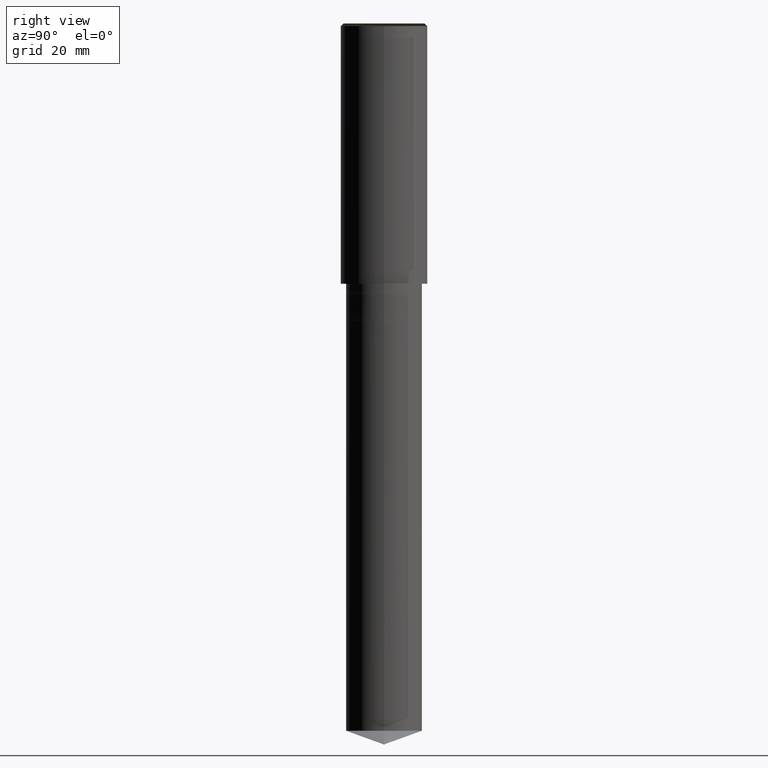
[diagram: clean part render]
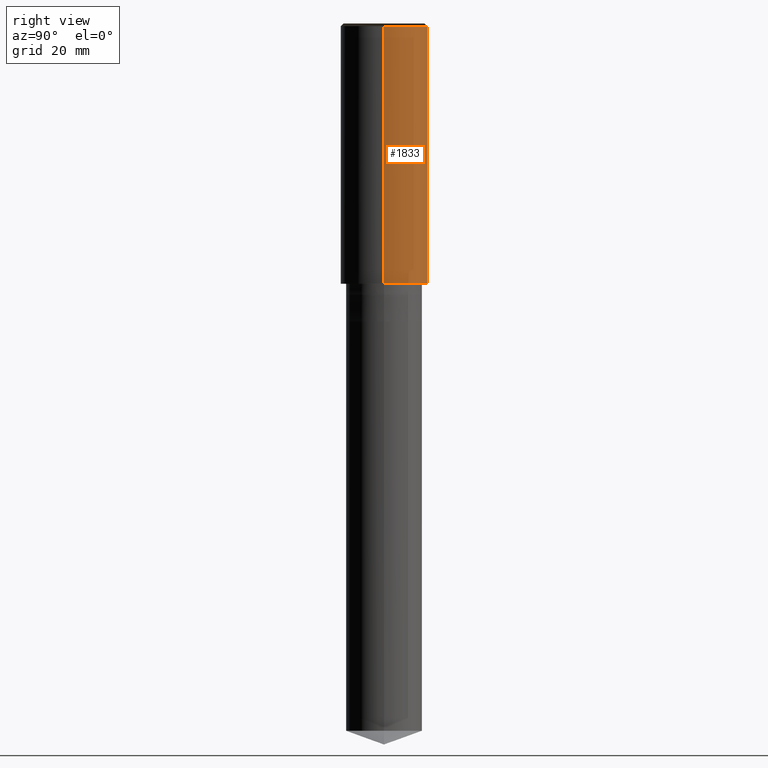
[diagram: same view with one face highlighted and labeled with its STEP entity id]
A machine part, right view. The second image highlights one B-rep face of the part: STEP entity #1833.
In plain terms, the highlighted face is a freeform B-spline surface patch.
Its self-contained STEP definition (entity closure, byte-faithful):
#1594=CARTESIAN_POINT('',(8.0,0.0,0.0));
#1595=CARTESIAN_POINT('',(8.0,8.0,0.0));
#1596=CARTESIAN_POINT('',(0.0,8.0,0.0));
#1597=CARTESIAN_POINT('',(-8.0,8.0,0.0));
#1598=CARTESIAN_POINT('',(-8.0,0.0,0.0));
#1599=CARTESIAN_POINT('',(8.0,0.0,47.5));
#1600=CARTESIAN_POINT('',(8.0,8.0,47.5));
#1601=CARTESIAN_POINT('',(0.0,8.0,47.5));
#1602=CARTESIAN_POINT('',(-8.0,8.0,47.5));
#1603=CARTESIAN_POINT('',(-8.0,0.0,47.5));
#1814=(
BOUNDED_SURFACE()
B_SPLINE_SURFACE(1,2,(
(#1594,#1595,#1596,#1597,#1598),
(#1599,#1600,#1601,#1602,#1603)
), .UNSPECIFIED.,.F.,.F.,.F.)
B_SPLINE_SURFACE_WITH_KNOTS((2,2),(3,2,3),(
0.0,1.0),(
0.0,0.5,1.0), .UNSPECIFIED.)
GEOMETRIC_REPRESENTATION_ITEM()
RATIONAL_B_SPLINE_SURFACE(((1.0,0.707106781187,1.0,0.707106781187,1.0),
(1.0,0.707106781187,1.0,0.707106781187,1.0)
))
REPRESENTATION_ITEM('')
SURFACE()
);
#1815=(
BOUNDED_CURVE()
B_SPLINE_CURVE(2,(#1598,#1597,#1596,#1595,#1594),.UNSPECIFIED.,.F.,.F.)
B_SPLINE_CURVE_WITH_KNOTS((3,2,3),
(0.0,0.5,1.0),.UNSPECIFIED.)
CURVE()
GEOMETRIC_REPRESENTATION_ITEM()
RATIONAL_B_SPLINE_CURVE((1.0,0.707106781187,1.0,0.707106781187,1.0))
REPRESENTATION_ITEM('')
);
#1816=(
BOUNDED_CURVE()
B_SPLINE_CURVE(1,(#1594,#1599),.UNSPECIFIED.,.F.,.F.)
B_SPLINE_CURVE_WITH_KNOTS((2,2),
(0.0,1.0),.UNSPECIFIED.)
CURVE()
GEOMETRIC_REPRESENTATION_ITEM()
RATIONAL_B_SPLINE_CURVE((1.0,1.0))
REPRESENTATION_ITEM('')
);
#1817=(
BOUNDED_CURVE()
B_SPLINE_CURVE(2,(#1599,#1600,#1601,#1602,#1603),.UNSPECIFIED.,.F.,.F.)
B_SPLINE_CURVE_WITH_KNOTS((3,2,3),
(0.0,0.5,1.0),.UNSPECIFIED.)
CURVE()
GEOMETRIC_REPRESENTATION_ITEM()
RATIONAL_B_SPLINE_CURVE((1.0,0.707106781187,1.0,0.707106781187,1.0))
REPRESENTATION_ITEM('')
);
#1818=(
BOUNDED_CURVE()
B_SPLINE_CURVE(1,(#1603,#1598),.UNSPECIFIED.,.F.,.F.)
B_SPLINE_CURVE_WITH_KNOTS((2,2),
(0.0,1.0),.UNSPECIFIED.)
CURVE()
GEOMETRIC_REPRESENTATION_ITEM()
RATIONAL_B_SPLINE_CURVE((1.0,1.0))
REPRESENTATION_ITEM('')
);
#1819=VERTEX_POINT('',#1594);
#1820=VERTEX_POINT('',#1598);
#1821=VERTEX_POINT('',#1599);
#1822=VERTEX_POINT('',#1603);
#1823=EDGE_CURVE('',#1820,#1819,#1815,.T.);
#1824=EDGE_CURVE('',#1819,#1821,#1816,.T.);
#1825=EDGE_CURVE('',#1821,#1822,#1817,.T.);
#1826=EDGE_CURVE('',#1822,#1820,#1818,.T.);
#1827=ORIENTED_EDGE('',*,*,#1823,.T.);
#1828=ORIENTED_EDGE('',*,*,#1824,.T.);
#1829=ORIENTED_EDGE('',*,*,#1825,.T.);
#1830=ORIENTED_EDGE('',*,*,#1826,.T.);
#1831=EDGE_LOOP('',(#1827,#1828,#1829,#1830));
#1832=FACE_OUTER_BOUND('',#1831,.T.);
#1833=ADVANCED_FACE('',(#1832),#1814,.T.);